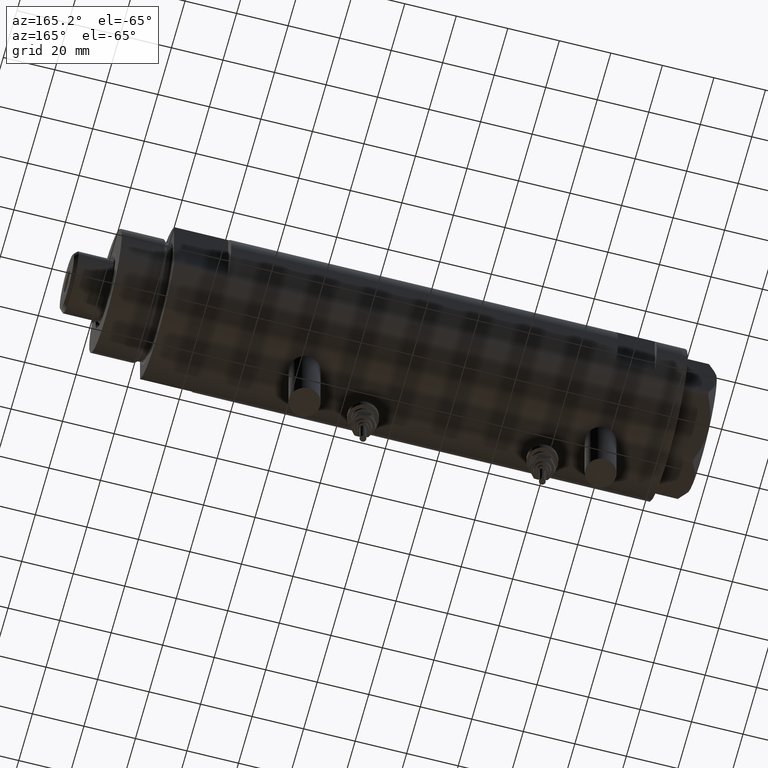
[diagram: clean part render]
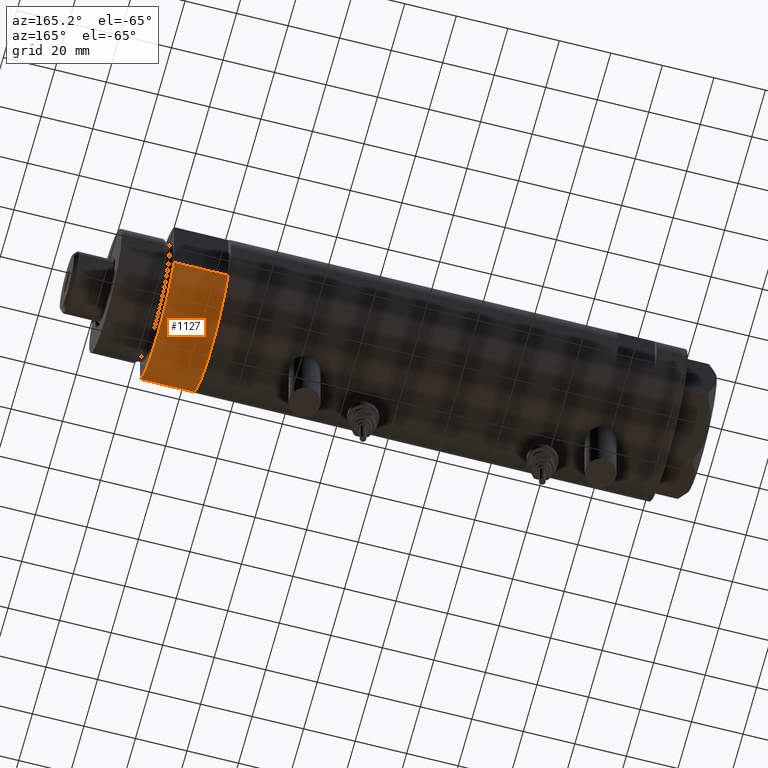
[diagram: same view with one face highlighted and labeled with its STEP entity id]
A machine part, auxiliary view. The second image highlights one B-rep face of the part: STEP entity #1127.
In plain terms, the highlighted cylindrical surface (partial cylindrical patch) has radius 29.5 mm, axis along (-1, -0, 0).
Its self-contained STEP definition (entity closure, byte-faithful):
#108 = AXIS2_PLACEMENT_3D ( 'NONE', #603, #4252, #1386 ) ;
#121 = AXIS2_PLACEMENT_3D ( 'NONE', #725, #5708, #4769 ) ;
#163 = ORIENTED_EDGE ( 'NONE', *, *, #499, .T. ) ;
#488 = FACE_OUTER_BOUND ( 'NONE', #2093, .T. ) ;
#499 = EDGE_CURVE ( 'NONE', #3868, #1419, #2551, .T. ) ;
#603 = CARTESIAN_POINT ( 'NONE',  ( 0.000000000000000000, 0.000000000000000000, 21.00000000000000000 ) ) ;
#725 = CARTESIAN_POINT ( 'NONE',  ( 0.000000000000000000, 0.000000000000000000, 0.000000000000000000 ) ) ;
#943 = CARTESIAN_POINT ( 'NONE',  ( 0.000000000000000000, 0.000000000000000000, 21.00000000000000000 ) ) ;
#972 = CIRCLE ( 'NONE', #108, 29.50000000000000355 ) ;
#985 = CIRCLE ( 'NONE', #121, 29.50000000000000355 ) ;
#1127 = ADVANCED_FACE ( 'NONE', ( #488 ), #5072, .T. ) ;
#1202 = EDGE_CURVE ( 'NONE', #1459, #3868, #985, .T. ) ;
#1386 = DIRECTION ( 'NONE',  ( 1.000000000000000000, 0.000000000000000000, 0.000000000000000000 ) ) ;
#1419 = VERTEX_POINT ( 'NONE', #5129 ) ;
#1458 = EDGE_CURVE ( 'NONE', #5901, #1419, #972, .T. ) ;
#1459 = VERTEX_POINT ( 'NONE', #4617 ) ;
#1507 = DIRECTION ( 'NONE',  ( -1.000000000000000000, 0.000000000000000000, 0.000000000000000000 ) ) ;
#1520 = ORIENTED_EDGE ( 'NONE', *, *, #2858, .F. ) ;
#2093 = EDGE_LOOP ( 'NONE', ( #3840, #1520, #4138, #163 ) ) ;
#2551 = LINE ( 'NONE', #2614, #5192 ) ;
#2614 = CARTESIAN_POINT ( 'NONE',  ( 15.66045976336583401, 25.00000000000000000, 0.000000000000000000 ) ) ;
#2858 = EDGE_CURVE ( 'NONE', #1459, #5901, #5154, .T. ) ;
#3183 = CARTESIAN_POINT ( 'NONE',  ( 15.66045976336583045, -25.00000000000000000, 21.00000000000000355 ) ) ;
#3718 = CARTESIAN_POINT ( 'NONE',  ( 15.66045976336582690, 25.00000000000000000, 0.000000000000000000 ) ) ;
#3840 = ORIENTED_EDGE ( 'NONE', *, *, #1458, .F. ) ;
#3868 = VERTEX_POINT ( 'NONE', #3718 ) ;
#4038 = AXIS2_PLACEMENT_3D ( 'NONE', #943, #5559, #1507 ) ;
#4138 = ORIENTED_EDGE ( 'NONE', *, *, #1202, .T. ) ;
#4183 = CARTESIAN_POINT ( 'NONE',  ( 15.66045976336583401, -25.00000000000000000, 0.000000000000000000 ) ) ;
#4252 = DIRECTION ( 'NONE',  ( 0.000000000000000000, 0.000000000000000000, 1.000000000000000000 ) ) ;
#4617 = CARTESIAN_POINT ( 'NONE',  ( 15.66045976336583401, -25.00000000000000000, 0.000000000000000000 ) ) ;
#4769 = DIRECTION ( 'NONE',  ( 1.000000000000000000, 0.000000000000000000, 0.000000000000000000 ) ) ;
#4881 = DIRECTION ( 'NONE',  ( -0.000000000000000000, -0.000000000000000000, 1.000000000000000000 ) ) ;
#5072 = CYLINDRICAL_SURFACE ( 'NONE', #4038, 29.50000000000000355 ) ;
#5129 = CARTESIAN_POINT ( 'NONE',  ( 15.66045976336583045, 24.99999999999999645, 20.99999999999999645 ) ) ;
#5154 = LINE ( 'NONE', #4183, #5688 ) ;
#5192 = VECTOR ( 'NONE', #4881, 1000.000000000000000 ) ;
#5559 = DIRECTION ( 'NONE',  ( -0.000000000000000000, -0.000000000000000000, -1.000000000000000000 ) ) ;
#5579 = DIRECTION ( 'NONE',  ( -0.000000000000000000, -0.000000000000000000, 1.000000000000000000 ) ) ;
#5688 = VECTOR ( 'NONE', #5579, 1000.000000000000000 ) ;
#5708 = DIRECTION ( 'NONE',  ( 0.000000000000000000, 0.000000000000000000, 1.000000000000000000 ) ) ;
#5901 = VERTEX_POINT ( 'NONE', #3183 ) ;